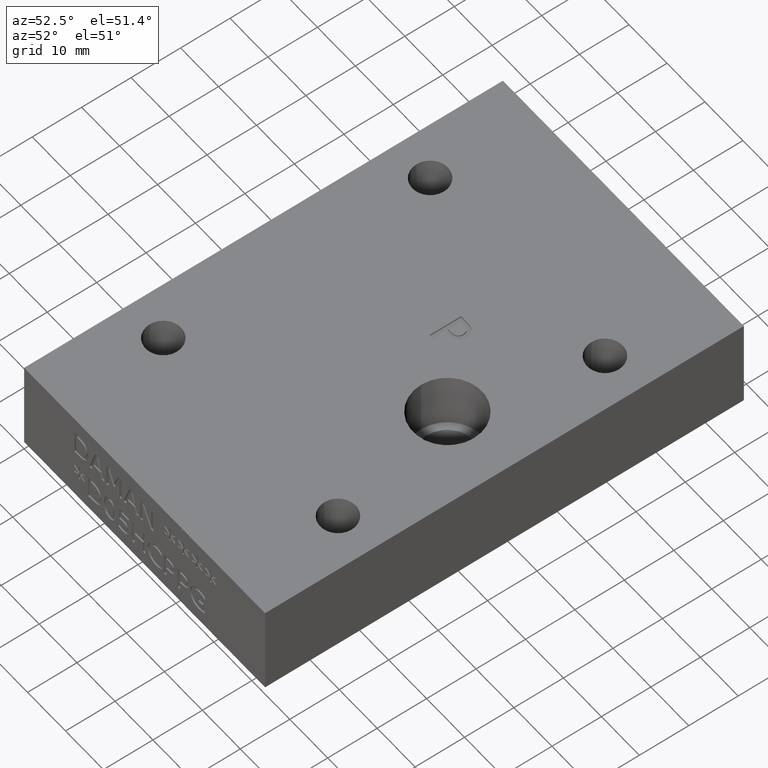
[diagram: clean part render]
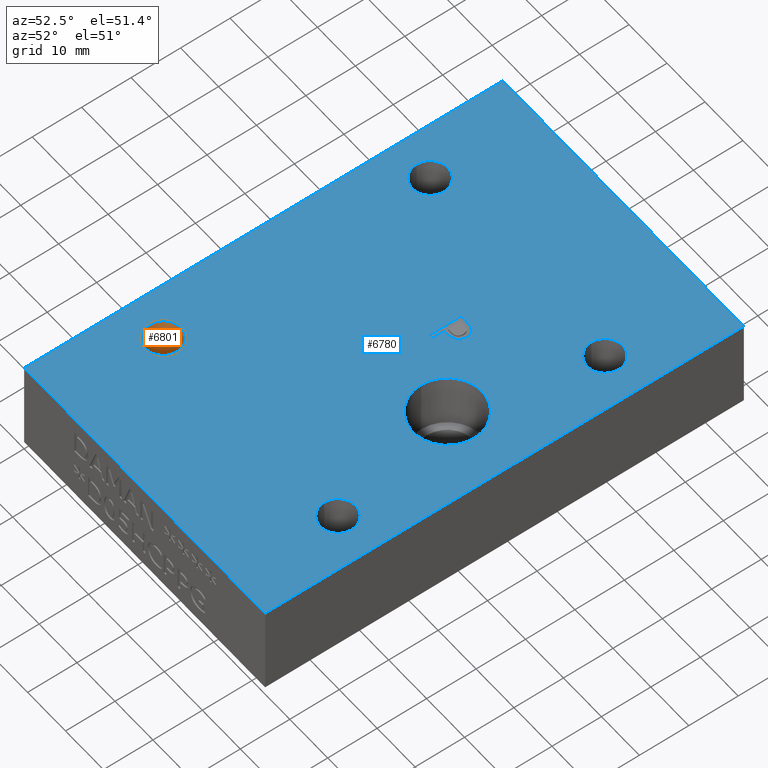
[diagram: same view with the hole feature highlighted: cylindrical wall and planar end face, labeled with their STEP entity ids]
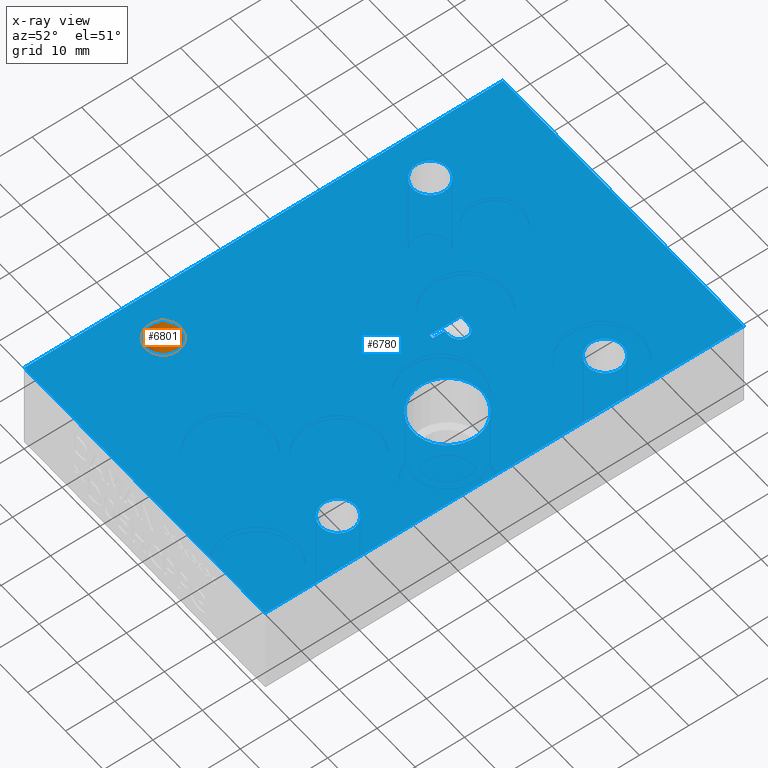
[diagram: x-ray of the same camera — body ghosted, the hole faces saturated]
A machine part, auxiliary view. The highlighted faces form one hole feature of diameter 7.1374 mm: the cylindrical wall (entity #6801, orange) and its adjacent planar end face (entity #6780, blue) — they share a circular edge in the B-rep.
The next image is the same camera in x-ray (body ghosted, the hole faces saturated) — the bore reads through the body.
Wall:
#25=CYLINDRICAL_SURFACE('',#7126,0.1405);
#32=CIRCLE('',#7063,0.1405);
#44=CIRCLE('',#7079,0.1405);
#45=CIRCLE('',#7080,0.1405);
#565=FACE_OUTER_BOUND('',#965,.T.);
#965=EDGE_LOOP('',(#6159,#6160,#6161,#6162,#6163));
#1705=LINE('',#11975,#2438);
#2438=VECTOR('',#8461,0.1405);
#3234=VERTEX_POINT('',#11838);
#3256=VERTEX_POINT('',#11889);
#3257=VERTEX_POINT('',#11890);
#4188=EDGE_CURVE('',#3234,#3234,#32,.T.);
#4213=EDGE_CURVE('',#3256,#3257,#44,.T.);
#4214=EDGE_CURVE('',#3257,#3256,#45,.T.);
#4253=EDGE_CURVE('',#3234,#3257,#1705,.T.);
#6159=ORIENTED_EDGE('',*,*,#4188,.F.);
#6160=ORIENTED_EDGE('',*,*,#4253,.T.);
#6161=ORIENTED_EDGE('',*,*,#4213,.F.);
#6162=ORIENTED_EDGE('',*,*,#4214,.F.);
#6163=ORIENTED_EDGE('',*,*,#4253,.F.);
#6801=ADVANCED_FACE('',(#565),#25,.F.);
#7063=AXIS2_PLACEMENT_3D('',#11839,#8311,#8312);
#7079=AXIS2_PLACEMENT_3D('',#11891,#8356,#8357);
#7080=AXIS2_PLACEMENT_3D('',#11892,#8358,#8359);
#7126=AXIS2_PLACEMENT_3D('',#11974,#8459,#8460);
#8311=DIRECTION('center_axis',(0.,0.,-1.));
#8312=DIRECTION('ref_axis',(1.,0.,0.));
#8356=DIRECTION('center_axis',(0.,0.,1.));
#8357=DIRECTION('ref_axis',(1.,0.,0.));
#8358=DIRECTION('center_axis',(0.,0.,1.));
#8359=DIRECTION('ref_axis',(1.,0.,0.));
#8459=DIRECTION('center_axis',(0.,0.,-1.));
#8460=DIRECTION('ref_axis',(1.,0.,0.));
#8461=DIRECTION('',(0.,0.,-1.));
#11838=CARTESIAN_POINT('',(0.20375,0.84375,0.75));
#11839=CARTESIAN_POINT('Origin',(0.34425,0.84375,0.75));
#11889=CARTESIAN_POINT('',(0.48475,0.84375,0.));
#11890=CARTESIAN_POINT('',(0.20375,0.84375,0.));
#11891=CARTESIAN_POINT('Origin',(0.34425,0.84375,0.));
#11892=CARTESIAN_POINT('Origin',(0.34425,0.84375,0.));
#11974=CARTESIAN_POINT('Origin',(0.34425,0.84375,0.425));
#11975=CARTESIAN_POINT('',(0.20375,0.84375,0.425));
End face:
#30=CIRCLE('',#7061,0.273);
#31=CIRCLE('',#7062,0.273);
#32=CIRCLE('',#7063,0.1405);
#33=CIRCLE('',#7064,0.1405);
#34=CIRCLE('',#7065,0.1405);
#35=CIRCLE('',#7066,0.1405);
#107=FACE_BOUND('',#926,.T.);
#108=FACE_BOUND('',#927,.T.);
#109=FACE_BOUND('',#928,.T.);
#110=FACE_BOUND('',#929,.T.);
#111=FACE_BOUND('',#930,.T.);
#112=FACE_BOUND('',#931,.T.);
#544=FACE_OUTER_BOUND('',#925,.T.);
#925=EDGE_LOOP('',(#6026,#6027,#6028,#6029));
#926=EDGE_LOOP('',(#6030,#6031));
#927=EDGE_LOOP('',(#6032));
#928=EDGE_LOOP('',(#6033));
#929=EDGE_LOOP('',(#6034));
#930=EDGE_LOOP('',(#6035));
#931=EDGE_LOOP('',(#6036,#6037,#6038,#6039,#6040,#6041,#6042,#6043,#6044));
#1644=LINE('',#11591,#2377);
#1661=LINE('',#11745,#2394);
#1664=LINE('',#11750,#2397);
#1666=LINE('',#11754,#2399);
#1675=LINE('',#11796,#2408);
#1677=LINE('',#11800,#2410);
#1680=LINE('',#11830,#2413);
#1681=LINE('',#11832,#2414);
#1682=LINE('',#11833,#2415);
#2377=VECTOR('',#8236,2.5);
#2394=VECTOR('',#8269,0.393700787401575);
#2397=VECTOR('',#8274,0.393700787401575);
#2399=VECTOR('',#8278,0.393700787401575);
#2408=VECTOR('',#8295,0.393700787401575);
#2410=VECTOR('',#8299,0.393700787401575);
#2413=VECTOR('',#8304,3.812);
#2414=VECTOR('',#8305,3.812);
#2415=VECTOR('',#8306,2.5);
#2630=B_SPLINE_CURVE_WITH_KNOTS('',2,(#11765,#11766,#11767,#11768),
 .UNSPECIFIED.,.F.,.F.,(3,1,3),(0.,1.,2.),.UNSPECIFIED.);
#2631=B_SPLINE_CURVE_WITH_KNOTS('',2,(#11779,#11780,#11781,#11782),
 .UNSPECIFIED.,.F.,.F.,(3,1,3),(0.,1.,2.),.UNSPECIFIED.);
#2632=B_SPLINE_CURVE_WITH_KNOTS('',2,(#11811,#11812,#11813,#11814),
 .UNSPECIFIED.,.F.,.F.,(3,1,3),(0.,1.,2.),.UNSPECIFIED.);
#2633=B_SPLINE_CURVE_WITH_KNOTS('',2,(#11824,#11825,#11826,#11827),
 .UNSPECIFIED.,.F.,.F.,(3,1,3),(0.,1.,2.),.UNSPECIFIED.);
#3194=VERTEX_POINT('',#11589);
#3195=VERTEX_POINT('',#11590);
#3219=VERTEX_POINT('',#11743);
#3220=VERTEX_POINT('',#11744);
#3221=VERTEX_POINT('',#11749);
#3222=VERTEX_POINT('',#11753);
#3223=VERTEX_POINT('',#11764);
#3224=VERTEX_POINT('',#11778);
#3227=VERTEX_POINT('',#11795);
#3228=VERTEX_POINT('',#11799);
#3229=VERTEX_POINT('',#11810);
#3230=VERTEX_POINT('',#11829);
#3231=VERTEX_POINT('',#11831);
#3232=VERTEX_POINT('',#11834);
#3233=VERTEX_POINT('',#11835);
#3234=VERTEX_POINT('',#11838);
#3235=VERTEX_POINT('',#11840);
#3236=VERTEX_POINT('',#11842);
#3237=VERTEX_POINT('',#11844);
#4131=EDGE_CURVE('',#3194,#3195,#1644,.T.);
#4160=EDGE_CURVE('',#3219,#3220,#1661,.T.);
#4163=EDGE_CURVE('',#3220,#3221,#1664,.T.);
#4165=EDGE_CURVE('',#3221,#3222,#1666,.T.);
#4167=EDGE_CURVE('',#3222,#3223,#2630,.T.);
#4169=EDGE_CURVE('',#3223,#3224,#2631,.T.);
#4176=EDGE_CURVE('',#3227,#3219,#1675,.T.);
#4178=EDGE_CURVE('',#3228,#3227,#1677,.T.);
#4180=EDGE_CURVE('',#3229,#3228,#2632,.T.);
#4182=EDGE_CURVE('',#3224,#3229,#2633,.T.);
#4183=EDGE_CURVE('',#3195,#3230,#1680,.T.);
#4184=EDGE_CURVE('',#3231,#3194,#1681,.T.);
#4185=EDGE_CURVE('',#3230,#3231,#1682,.T.);
#4186=EDGE_CURVE('',#3232,#3233,#30,.T.);
#4187=EDGE_CURVE('',#3233,#3232,#31,.T.);
#4188=EDGE_CURVE('',#3234,#3234,#32,.T.);
#4189=EDGE_CURVE('',#3235,#3235,#33,.T.);
#4190=EDGE_CURVE('',#3236,#3236,#34,.T.);
#4191=EDGE_CURVE('',#3237,#3237,#35,.T.);
#6026=ORIENTED_EDGE('',*,*,#4183,.F.);
#6027=ORIENTED_EDGE('',*,*,#4131,.F.);
#6028=ORIENTED_EDGE('',*,*,#4184,.F.);
#6029=ORIENTED_EDGE('',*,*,#4185,.F.);
#6030=ORIENTED_EDGE('',*,*,#4186,.T.);
#6031=ORIENTED_EDGE('',*,*,#4187,.T.);
#6032=ORIENTED_EDGE('',*,*,#4188,.T.);
#6033=ORIENTED_EDGE('',*,*,#4189,.T.);
#6034=ORIENTED_EDGE('',*,*,#4190,.T.);
#6035=ORIENTED_EDGE('',*,*,#4191,.T.);
#6036=ORIENTED_EDGE('',*,*,#4160,.T.);
#6037=ORIENTED_EDGE('',*,*,#4163,.T.);
#6038=ORIENTED_EDGE('',*,*,#4165,.T.);
#6039=ORIENTED_EDGE('',*,*,#4167,.T.);
#6040=ORIENTED_EDGE('',*,*,#4169,.T.);
#6041=ORIENTED_EDGE('',*,*,#4182,.T.);
#6042=ORIENTED_EDGE('',*,*,#4180,.T.);
#6043=ORIENTED_EDGE('',*,*,#4178,.T.);
#6044=ORIENTED_EDGE('',*,*,#4176,.T.);
#6440=PLANE('',#7060);
#6780=ADVANCED_FACE('',(#544,#107,#108,#109,#110,#111,#112),#6440,.T.);
#7060=AXIS2_PLACEMENT_3D('',#11828,#8302,#8303);
#7061=AXIS2_PLACEMENT_3D('',#11836,#8307,#8308);
#7062=AXIS2_PLACEMENT_3D('',#11837,#8309,#8310);
#7063=AXIS2_PLACEMENT_3D('',#11839,#8311,#8312);
#7064=AXIS2_PLACEMENT_3D('',#11841,#8313,#8314);
#7065=AXIS2_PLACEMENT_3D('',#11843,#8315,#8316);
#7066=AXIS2_PLACEMENT_3D('',#11845,#8317,#8318);
#8236=DIRECTION('',(-1.,0.,0.));
#8269=DIRECTION('',(-1.,0.,0.));
#8274=DIRECTION('',(0.,1.,0.));
#8278=DIRECTION('',(1.,0.,0.));
#8295=DIRECTION('',(0.,-1.,0.));
#8299=DIRECTION('',(-1.,0.,0.));
#8302=DIRECTION('center_axis',(0.,0.,1.));
#8303=DIRECTION('ref_axis',(1.,0.,0.));
#8304=DIRECTION('',(0.,1.,0.));
#8305=DIRECTION('',(0.,-1.,0.));
#8306=DIRECTION('',(1.,0.,0.));
#8307=DIRECTION('center_axis',(0.,0.,-1.));
#8308=DIRECTION('ref_axis',(1.,0.,0.));
#8309=DIRECTION('center_axis',(0.,0.,-1.));
#8310=DIRECTION('ref_axis',(1.,0.,0.));
#8311=DIRECTION('center_axis',(0.,0.,-1.));
#8312=DIRECTION('ref_axis',(1.,0.,0.));
#8313=DIRECTION('center_axis',(0.,0.,-1.));
#8314=DIRECTION('ref_axis',(1.,0.,0.));
#8315=DIRECTION('center_axis',(0.,0.,-1.));
#8316=DIRECTION('ref_axis',(1.,0.,0.));
#8317=DIRECTION('center_axis',(0.,0.,-1.));
#8318=DIRECTION('ref_axis',(1.,0.,0.));
#11589=CARTESIAN_POINT('',(2.5,0.,0.75));
#11590=CARTESIAN_POINT('',(0.,0.,0.75));
#11591=CARTESIAN_POINT('',(2.5,0.,0.75));
#11743=CARTESIAN_POINT('',(1.38242980872597,2.19319734602884,0.75));
#11744=CARTESIAN_POINT('',(1.34920452559449,2.19319734602884,0.75));
#11745=CARTESIAN_POINT('',(1.29960226279725,2.19319734602884,0.75));
#11749=CARTESIAN_POINT('',(1.34920452559449,2.44319734227422,0.75));
#11750=CARTESIAN_POINT('',(1.34920452559449,2.17459867113711,0.75));
#11753=CARTESIAN_POINT('',(1.41200841444058,2.44319734227422,0.75));
#11754=CARTESIAN_POINT('',(1.33100420722029,2.44319734227422,0.75));
#11764=CARTESIAN_POINT('',(1.4774460147544,2.42759766665761,0.75));
#11765=CARTESIAN_POINT('Ctrl Pts',(1.41200841444058,2.44319734227422,0.750000000000001));
#11766=CARTESIAN_POINT('Ctrl Pts',(1.43429366532145,2.44319734227422,0.750000000000001));
#11767=CARTESIAN_POINT('Ctrl Pts',(1.46549301655466,2.43590398744048,0.750000000000001));
#11768=CARTESIAN_POINT('Ctrl Pts',(1.4774460147544,2.42759766665761,0.750000000000001));
#11778=CARTESIAN_POINT('',(1.50722721365883,2.36783267565892,0.75));
#11779=CARTESIAN_POINT('Ctrl Pts',(1.4774460147544,2.42759766665761,0.750000000000001));
#11780=CARTESIAN_POINT('Ctrl Pts',(1.4914249448524,2.41807578673579,0.750000000000001));
#11781=CARTESIAN_POINT('Ctrl Pts',(1.50722721365883,2.38869977421101,0.750000000000001));
#11782=CARTESIAN_POINT('Ctrl Pts',(1.50722721365883,2.36783267565892,0.750000000000001));
#11795=CARTESIAN_POINT('',(1.38242980872597,2.28639021334884,0.75));
#11796=CARTESIAN_POINT('',(1.38242980872597,2.04959867301442,0.75));
#11799=CARTESIAN_POINT('',(1.41059026211179,2.28639021334884,0.75));
#11800=CARTESIAN_POINT('',(1.31621490436299,2.28639021334884,0.75));
#11810=CARTESIAN_POINT('',(1.48534714915762,2.31232214164658,0.75));
#11811=CARTESIAN_POINT('Ctrl Pts',(1.48534714915762,2.31232214164658,0.750000000000001));
#11812=CARTESIAN_POINT('Ctrl Pts',(1.47238118500875,2.29955877068753,0.750000000000001));
#11813=CARTESIAN_POINT('Ctrl Pts',(1.43733256316884,2.28639021334884,0.750000000000001));
#11814=CARTESIAN_POINT('Ctrl Pts',(1.41059026211179,2.28639021334884,0.750000000000001));
#11824=CARTESIAN_POINT('Ctrl Pts',(1.50722721365883,2.36783267565892,0.750000000000001));
#11825=CARTESIAN_POINT('Ctrl Pts',(1.50722721365883,2.35162522047284,0.750000000000001));
#11826=CARTESIAN_POINT('Ctrl Pts',(1.49567940183875,2.32245180113788,0.750000000000001));
#11827=CARTESIAN_POINT('Ctrl Pts',(1.48534714915762,2.31232214164658,0.750000000000001));
#11828=CARTESIAN_POINT('Origin',(1.25,1.906,0.75));
#11829=CARTESIAN_POINT('',(0.,3.812,0.75));
#11830=CARTESIAN_POINT('',(0.,0.,0.75));
#11831=CARTESIAN_POINT('',(2.5,3.812,0.75));
#11832=CARTESIAN_POINT('',(2.5,3.812,0.75));
#11833=CARTESIAN_POINT('',(0.,3.812,0.75));
#11834=CARTESIAN_POINT('',(2.181,1.906,0.75));
#11835=CARTESIAN_POINT('',(1.635,1.906,0.75));
#11836=CARTESIAN_POINT('Origin',(1.908,1.906,0.75));
#11837=CARTESIAN_POINT('Origin',(1.908,1.906,0.75));
#11838=CARTESIAN_POINT('',(0.20375,0.84375,0.75));
#11839=CARTESIAN_POINT('Origin',(0.34425,0.84375,0.75));
#11840=CARTESIAN_POINT('',(2.01625,0.84375,0.75));
#11841=CARTESIAN_POINT('Origin',(2.15675,0.84375,0.75));
#11842=CARTESIAN_POINT('',(0.20325,2.96875,0.75));
#11843=CARTESIAN_POINT('Origin',(0.34375,2.96875,0.75));
#11844=CARTESIAN_POINT('',(2.01625,2.96925,0.75));
#11845=CARTESIAN_POINT('Origin',(2.15675,2.96925,0.75));